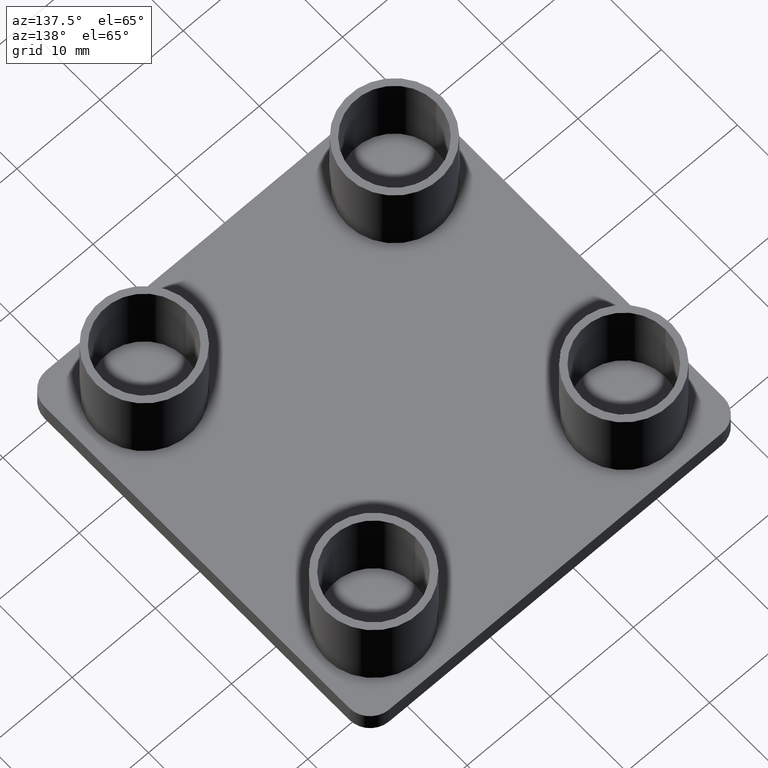
[diagram: clean part render]
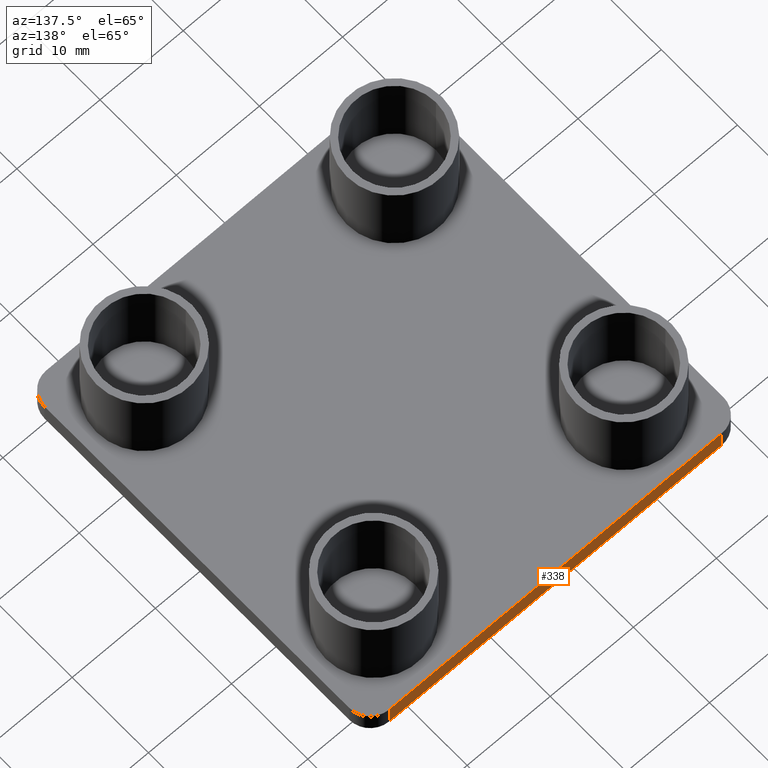
[diagram: same view with one face highlighted and labeled with its STEP entity id]
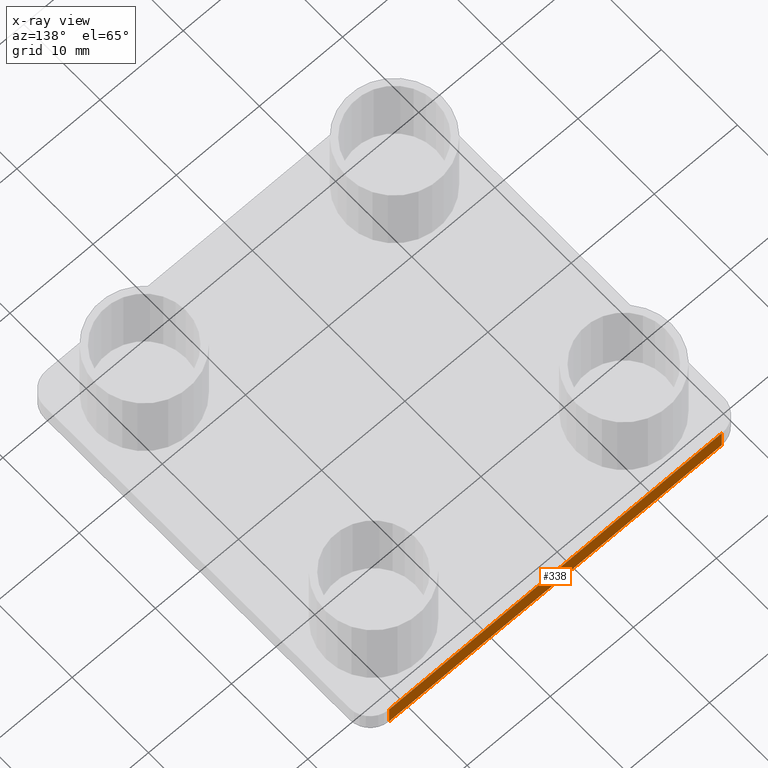
[diagram: x-ray of the same camera — body ghosted, the highlighted face saturated]
A machine part, auxiliary view. The second image highlights one B-rep face of the part: STEP entity #338.
The next image is the same camera in x-ray: the body ghosted, the highlighted face saturated — about 0% of this face is hidden behind the body in this view.
In plain terms, the highlighted planar face has unit normal (0, -1, 0).
Its self-contained STEP definition (entity closure, byte-faithful):
#33=PLANE('',#372);
#50=FACE_OUTER_BOUND('',#76,.T.);
#76=EDGE_LOOP('',(#261,#262,#263,#264));
#146=LINE('',#561,#162);
#147=LINE('',#565,#163);
#148=LINE('',#567,#164);
#149=LINE('',#568,#165);
#162=VECTOR('',#442,2.5);
#163=VECTOR('',#447,39.99995599984);
#164=VECTOR('',#448,2.5);
#165=VECTOR('',#449,39.99995599984);
#179=VERTEX_POINT('',#558);
#180=VERTEX_POINT('',#560);
#181=VERTEX_POINT('',#564);
#182=VERTEX_POINT('',#566);
#215=EDGE_CURVE('',#180,#179,#146,.T.);
#217=EDGE_CURVE('',#179,#181,#147,.T.);
#218=EDGE_CURVE('',#182,#181,#148,.T.);
#219=EDGE_CURVE('',#180,#182,#149,.T.);
#261=ORIENTED_EDGE('',*,*,#215,.T.);
#262=ORIENTED_EDGE('',*,*,#217,.T.);
#263=ORIENTED_EDGE('',*,*,#218,.F.);
#264=ORIENTED_EDGE('',*,*,#219,.F.);
#338=ADVANCED_FACE('',(#50),#33,.F.);
#372=AXIS2_PLACEMENT_3D('',#563,#445,#446);
#442=DIRECTION('',(0.,0.,-1.));
#445=DIRECTION('center_axis',(0.,-1.,0.));
#446=DIRECTION('ref_axis',(0.,0.,-1.));
#447=DIRECTION('',(-1.,0.,0.));
#448=DIRECTION('',(0.,0.,-1.));
#449=DIRECTION('',(-1.,0.,0.));
#558=CARTESIAN_POINT('',(42.4999554998299,22.4999774999101,-2.5));
#560=CARTESIAN_POINT('',(42.4999554998299,22.4999774999101,0.));
#561=CARTESIAN_POINT('',(42.4999554998299,22.4999774999101,0.));
#563=CARTESIAN_POINT('Origin',(42.4999554998299,22.4999774999101,0.));
#564=CARTESIAN_POINT('',(2.49999949998983,22.4999774999101,-2.5));
#565=CARTESIAN_POINT('',(42.4999554998299,22.4999774999101,-2.5));
#566=CARTESIAN_POINT('',(2.49999949998983,22.4999774999101,0.));
#567=CARTESIAN_POINT('',(2.49999949998983,22.4999774999101,0.));
#568=CARTESIAN_POINT('',(42.4999554998299,22.4999774999101,0.));